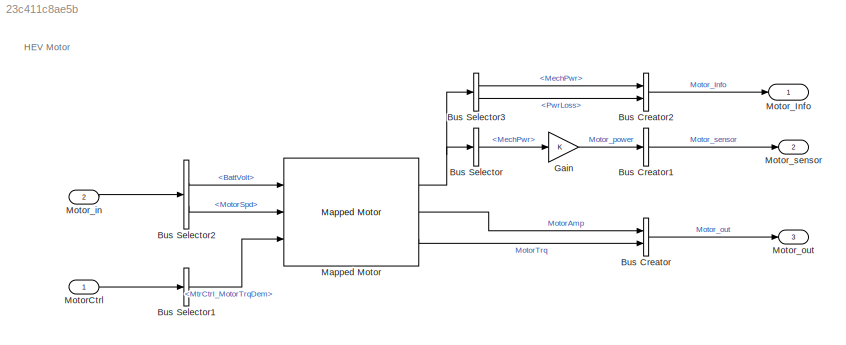
MODEL slx_23c411c8ae5b
KIND model
CONFIG AbsTol = auto
CONFIG EnableMultiTasking = on
CONFIG FixedStep = 0.001
CONFIG MaxStep = auto
CONFIG MinStep = auto
CONFIG PreLoadFcn = Motor_MapMdl_Ptbs_V1_BusInfo
CONFIG RelTol = auto
CONFIG SampleTimeConstraint = Unconstrained
CONFIG Solver = FixedStepAuto
CONFIG SolverName = FixedStepAuto
CONFIG StartTime = 0.0
CONFIG StopTime = 660
WORKSPACE source: MAT-file member
WORKSPACE mot: struct (value not decoded)
BLOCK [BusCreator] Bus Creator
  AttributesFormatString = %<OutDataTypeStr>
  DisplayOption = bar
  InheritFromInputs = on
  Inputs = 2
  OutDataTypeStr = Bus: Motor_out_Bus
  Ports = [2, 1]
BLOCK [BusCreator] Bus Creator1
  AttributesFormatString = %<OutDataTypeStr>
  DisplayOption = bar
  InheritFromInputs = on
  Inputs = 1
  OutDataTypeStr = Bus: Motor_sensor_Bus
  Ports = [1, 1]
BLOCK [BusCreator] Bus Creator2
  AttributesFormatString = %<OutDataTypeStr>
  DisplayOption = bar
  InheritFromInputs = on
  Inputs = 2
  OutDataTypeStr = Bus: Motor_Info_out_Bus
  Ports = [2, 1]
BLOCK [BusSelector] Bus Selector
  OutputAsBus = off
  OutputSignals = MechPwr
  Ports = [1, 1]
BLOCK [BusSelector] Bus Selector1
  OutputAsBus = off
  OutputSignals = MtrCtrl_MotorTrqDem
  Ports = [1, 1]
BLOCK [BusSelector] Bus Selector2
  OutputAsBus = off
  OutputSignals = BattVolt,MotorSpd
  Ports = [1, 2]
BLOCK [BusSelector] Bus Selector3
  OutputAsBus = off
  OutputSignals = MechPwr,PwrLoss
  Ports = [1, 2]
BLOCK [Gain] Gain
  OutDataTypeStr = Inherit: Inherit via internal rule
  ParamDataTypeStr = Inherit: Inherit via internal rule
  SaturateOnIntegerOverflow = off
BLOCK [Reference] Mapped Motor  REF=autolibmappedmotor/Mapped Motor
  Ports = [3, 3]
  SourceBlock = autolibmappedmotor/Mapped Motor
  SourceProductBaseCode = PW
  SourceProductName = Powertrain Blockset
  SourceType = MappedMotor
BLOCK [Inport] MotorCtrl
  AttributesFormatString = %<OutDataTypeStr>
  IconDisplay = Port number
  OutDataTypeStr = Bus: MotorCtrl_Bus
  SampleTime = 0
BLOCK [Outport] Motor_Info
  AttributesFormatString = %<OutDataTypeStr>
  IconDisplay = Port number
  OutDataTypeStr = Bus: Motor_Info_out_Bus
BLOCK [Inport] Motor_in
  AttributesFormatString = %<OutDataTypeStr>
  IconDisplay = Port number
  OutDataTypeStr = Bus: Motor_in_Bus
  Port = 2
BLOCK [Outport] Motor_out
  AttributesFormatString = %<OutDataTypeStr>
  IconDisplay = Port number
  OutDataTypeStr = Bus: Motor_out_Bus
  Port = 3
BLOCK [Outport] Motor_sensor
  AttributesFormatString = %<OutDataTypeStr>
  IconDisplay = Port number
  OutDataTypeStr = Bus: Motor_sensor_Bus
  Port = 2
ANNOTATION (root): HEV Motor
LINE Bus Creator1:1 -> Motor_sensor:1
LINE Bus Creator2:1 -> Motor_Info:1
LINE Bus Creator:1 -> Motor_out:1
LINE Bus Selector1:1 -> Mapped Motor:3
LINE Bus Selector2:1 -> Mapped Motor:1
LINE Bus Selector2:2 -> Mapped Motor:2
LINE Bus Selector3:1 -> Bus Creator2:1
LINE Bus Selector3:2 -> Bus Creator2:2
LINE Bus Selector:1 -> Gain:1
LINE Gain:1 -> Bus Creator1:1
NET Mapped Motor:1 -> Bus Selector3:1, Bus Selector:1
LINE Mapped Motor:2 -> Bus Creator:1
LINE Mapped Motor:3 -> Bus Creator:2
LINE MotorCtrl:1 -> Bus Selector1:1
LINE Motor_in:1 -> Bus Selector2:1
note: NET lines group one-source signal fan-out (src -> all destinations, sorted); 1:1 wires keep LINE
